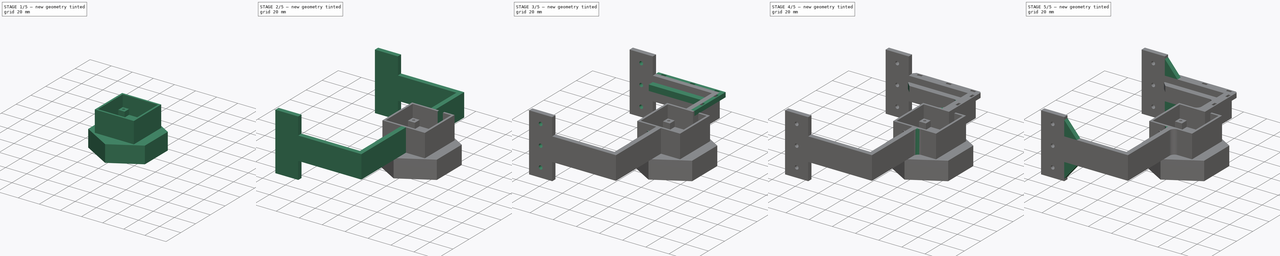
[diagram: build sequence overview — one tinted view per stage of 5, left to right]
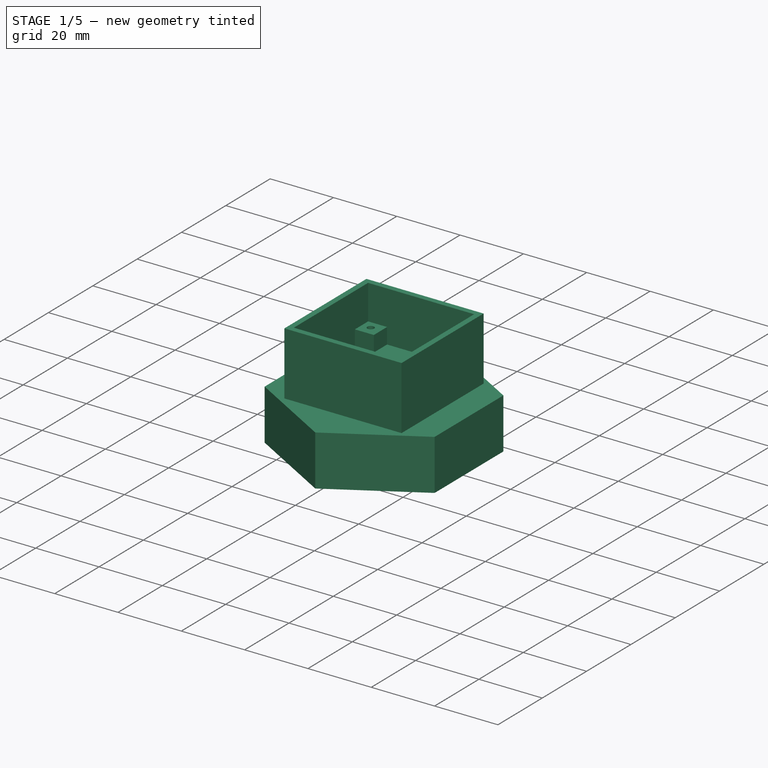
[diagram: stage 1 of 5 — iso view after this stage's code; geometry added in this stage tinted green]
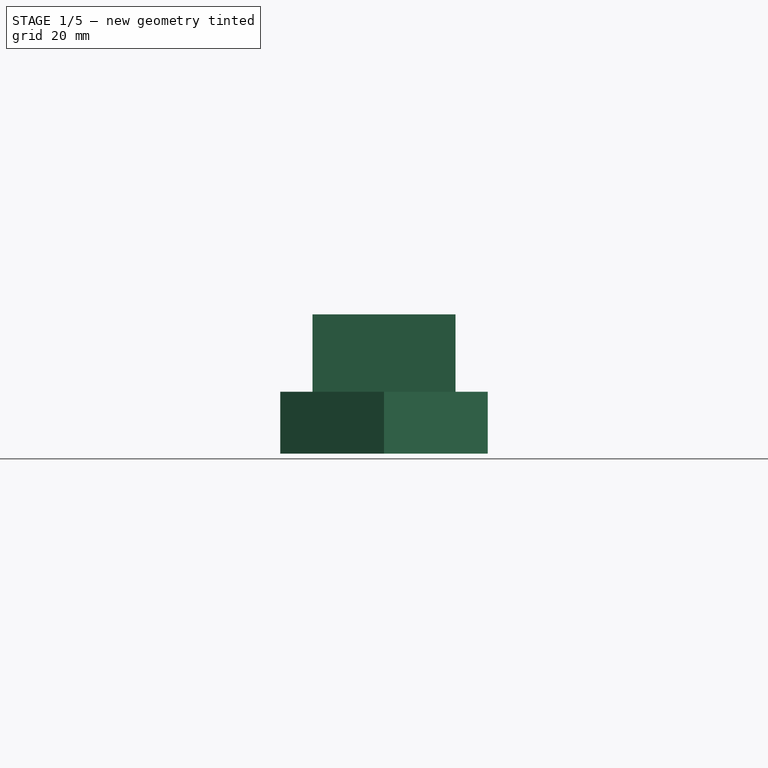
[diagram: stage 1 of 5 — front view after this stage's code; geometry added in this stage tinted green]
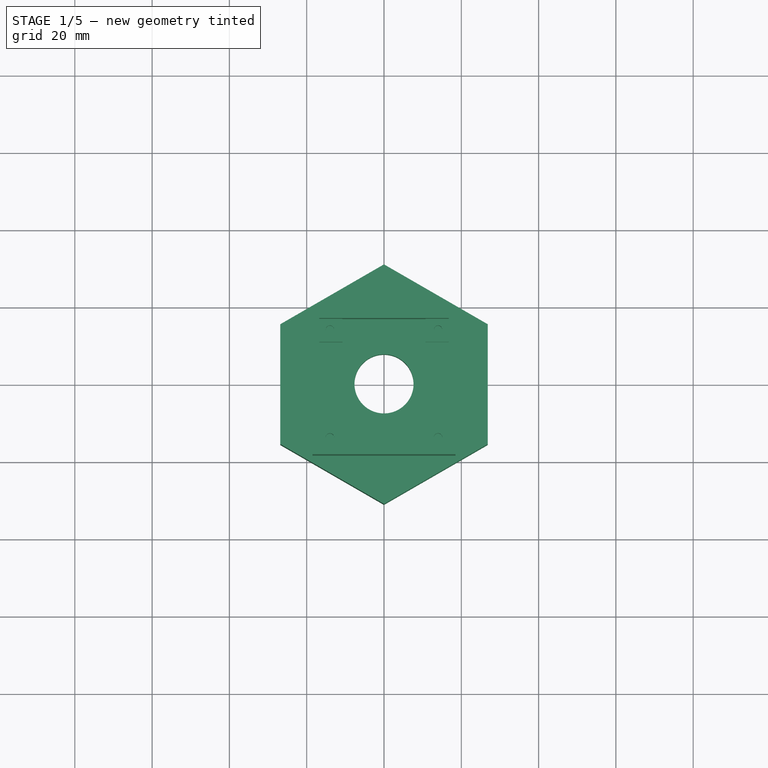
[diagram: stage 1 of 5 — top view after this stage's code; geometry added in this stage tinted green]
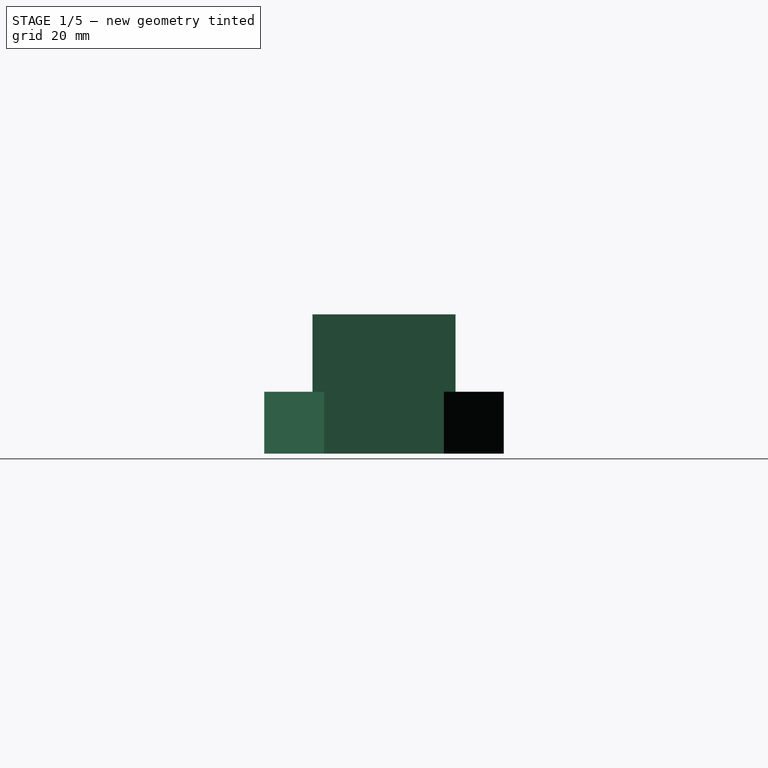
[diagram: stage 1 of 5 — right view after this stage's code; geometry added in this stage tinted green]
FCSTD DOCUMENT  (FreeCAD 0.20R29177 +233 (Git))
Label: cam_up_holder
License: All rights reserved
LicenseURL: http://en.wikipedia.org/wiki/All_rights_reserved
objects: Sketcher::SketchObject×25, PartDesign::Pad×17, PartDesign::Fillet×9, PartDesign::Pocket×8, PartDesign::Chamfer×2, PartDesign::Plane×1, PartDesign::Body×1
note: 99 computed .brp shape members not serialized (recipe doc carries the construction recipe); baked Part::Feature solids carry a one-line shape summary decoded from their .brp

FEATURE [Sketcher::SketchObject] Sketch
  FullyConstrained = true
  MapMode = 5
  Support = -> [XY_Plane]
  sketch-geometry (4):
    g0: LineSegment StartX=-18.5 StartY=18.5 StartZ=0 EndX=18.5 EndY=18.5 EndZ=0
    g1: LineSegment StartX=18.5 StartY=18.5 StartZ=0 EndX=18.5 EndY=-18.5 EndZ=0
    g2: LineSegment StartX=18.5 StartY=-18.5 StartZ=0 EndX=-18.5 EndY=-18.5 EndZ=0
    g3: LineSegment StartX=-18.5 StartY=-18.5 StartZ=0 EndX=-18.5 EndY=18.5 EndZ=0
  constraints (10):
    c: Coincident(g0,g1)
    c: Coincident(g1,g2)
    c: Coincident(g2,g3)
    c: Coincident(g3,g0)
    c: Horizontal(g2)
    c: Vertical(g1)
    c: DistanceX(g0,g0) = 37
    c: DistanceY(g1,g1) = 37
    c: Symmetric(g0,g0,g-2)
    c: Symmetric(g0,g2,g-1)
FEATURE [PartDesign::Pad] Pad
  Direction = (0,0,1)
  Length = 20
  Length2 = 10
  Profile = -> Sketch
  ReferenceAxis = -> Sketch [N_Axis]
  Type = 0
FEATURE [Sketcher::SketchObject] Sketch001
  FullyConstrained = true
  MapMode = 5
  Placement = pos=(0,0,20) rot=(0,0,1;0rad)
  Support = -> [Pad]
  sketch-geometry (4):
    g0: LineSegment StartX=-16.75 StartY=16.75 StartZ=0 EndX=16.75 EndY=16.75 EndZ=0
    g1: LineSegment StartX=16.75 StartY=16.75 StartZ=0 EndX=16.75 EndY=-16.75 EndZ=0
    g2: LineSegment StartX=16.75 StartY=-16.75 StartZ=0 EndX=-16.75 EndY=-16.75 EndZ=0
    g3: LineSegment StartX=-16.75 StartY=-16.75 StartZ=0 EndX=-16.75 EndY=16.75 EndZ=0
  constraints (10):
    c: Coincident(g0,g1)
    c: Coincident(g1,g2)
    c: Coincident(g2,g3)
    c: Coincident(g3,g0)
    c: Horizontal(g2)
    c: Vertical(g1)
    c: DistanceY(g1,g1) = 33.5
    c: DistanceX(g2,g2) = 33.5
    c: Symmetric(g0,g0,g-2)
    c: Symmetric(g0,g2,g-1)
FEATURE [PartDesign::Pocket] Pocket
  BaseFeature = -> Pad
  Direction = (0,0,-1)
  Length = 16
  Length2 = 5
  Profile = -> Sketch001
  ReferenceAxis = -> Sketch001 [N_Axis]
  Type = 0
FEATURE [Sketcher::SketchObject] Sketch002
  FullyConstrained = false
  MapMode = 5
  Placement = pos=(0,0,4) rot=(0,0,1;0rad)
  Support = -> [Pocket]
  sketch-geometry (1):
    g0: Circle CenterX=0 CenterY=0 CenterZ=0 NormalX=0 NormalY=0 NormalZ=1 AngleXU=0 Radius=7.57861
  constraints (1):
    c: Coincident(g0,g-1)
FEATURE [PartDesign::Pocket] Pocket001
  BaseFeature = -> Pocket
  Direction = (0,0,-1)
  Length = 5
  Length2 = 5
  Profile = -> Sketch002
  ReferenceAxis = -> Sketch002 [N_Axis]
  Type = 0
FEATURE [Sketcher::SketchObject] Sketch003
  ExternalGeometry = -> [Pocket001]
  FullyConstrained = false
  MapMode = 5
  Placement = pos=(0,0,4) rot=(0,0,1;0rad)
  Support = -> [Pocket001]
  sketch-geometry (20):
    g0: LineSegment StartX=-16.75 StartY=16.75 StartZ=0 EndX=-10.763 EndY=16.75 EndZ=0
    g1: LineSegment StartX=-10.763 StartY=16.75 StartZ=0 EndX=-10.763 EndY=10.7788 EndZ=0
    g2: LineSegment StartX=-10.763 StartY=10.7788 StartZ=0 EndX=-16.75 EndY=10.7788 EndZ=0
    g3: LineSegment StartX=-16.75 StartY=10.7788 StartZ=0 EndX=-16.75 EndY=16.75 EndZ=0
    g4: LineSegment StartX=-16.75 StartY=-16.75 StartZ=0 EndX=-10.7906 EndY=-16.75 EndZ=0
    g5: LineSegment StartX=-10.7906 StartY=-16.75 StartZ=0 EndX=-10.7906 EndY=-10.7578 EndZ=0
    g6: LineSegment StartX=-10.7906 StartY=-10.7578 StartZ=0 EndX=-16.75 EndY=-10.7578 EndZ=0
    g7: LineSegment StartX=-16.75 StartY=-10.7578 StartZ=0 EndX=-16.75 EndY=-16.75 EndZ=0
    g8: LineSegment StartX=16.75 StartY=-16.75 StartZ=0 EndX=10.7923 EndY=-16.75 EndZ=0
    g9: LineSegment StartX=10.7923 StartY=-16.75 StartZ=0 EndX=10.7923 EndY=-10.7967 EndZ=0
    g10: LineSegment StartX=10.7923 StartY=-10.7967 StartZ=0 EndX=16.75 EndY=-10.7967 EndZ=0
    g11: LineSegment StartX=16.75 StartY=-10.7967 StartZ=0 EndX=16.75 EndY=-16.75 EndZ=0
    g12: LineSegment StartX=16.75 StartY=16.75 StartZ=0 EndX=10.7559 EndY=16.75 EndZ=0
    g13: LineSegment StartX=10.7559 StartY=16.75 StartZ=0 EndX=10.7559 EndY=10.7913 EndZ=0
    g14: LineSegment StartX=10.7559 StartY=10.7913 StartZ=0 EndX=16.75 EndY=10.7913 EndZ=0
    g15: LineSegment StartX=16.75 StartY=10.7913 StartZ=0 EndX=16.75 EndY=16.75 EndZ=0
    g16: Circle CenterX=-14 CenterY=14 CenterZ=0 NormalX=0 NormalY=0 NormalZ=1 AngleXU=0 Radius=1.05689
    g17: Circle CenterX=14 CenterY=14 CenterZ=0 NormalX=0 NormalY=0 NormalZ=1 AngleXU=0 Radius=1.05178
    g18: Circle CenterX=14 CenterY=-14 CenterZ=0 NormalX=0 NormalY=0 NormalZ=1 AngleXU=0 Radius=1.1422
    g19: Circle CenterX=-14 CenterY=-14 CenterZ=0 NormalX=0 NormalY=0 NormalZ=1 AngleXU=0 Radius=1.1337
  constraints (44):
    c: Coincident(g0,g1)
    c: Coincident(g1,g2)
    c: Coincident(g2,g3)
    c: Coincident(g3,g0)
    c: Horizontal(g0)
    c: Horizontal(g2)
    c: Vertical(g1)
    c: Vertical(g3)
    c: Coincident(g0,g-4)
    c: Coincident(g4,g5)
    c: Coincident(g5,g6)
    c: Coincident(g6,g7)
    c: Coincident(g7,g4)
    c: Horizontal(g4)
    c: Horizontal(g6)
    c: Vertical(g5)
    c: Vertical(g7)
    c: Coincident(g4,g-6)
    c: Coincident(g8,g9)
    c: Coincident(g9,g10)
    c: Coincident(g10,g11)
    c: Coincident(g11,g8)
    c: Horizontal(g8)
    c: Horizontal(g10)
    c: Vertical(g9)
    c: Vertical(g11)
    c: Coincident(g8,g-6)
    c: Coincident(g12,g13)
    c: Coincident(g13,g14)
    c: Coincident(g14,g15)
    c: Coincident(g15,g12)
    c: Horizontal(g12)
    c: Horizontal(g14)
    c: Vertical(g13)
    c: Vertical(g15)
    c: Coincident(g12,g-5)
    c: Distance(g19,g-2) = 14
    c: Distance(g18,g-2) = 14
    c: Distance(g19,g-1) = 14
    c: Distance(g18,g-1) = 14
    c: Distance(g17,g-1) = 14
    c: Distance(g17,g-2) = 14
    c: Distance(g16,g-1) = 14
    c: Distance(g16,g-2) = 14
FEATURE [PartDesign::Pad] Pad001
  BaseFeature = -> Pocket001
  Direction = (0,0,1)
  Length = 5
  Length2 = 10
  Profile = -> Sketch003
  ReferenceAxis = -> Sketch003 [N_Axis]
  Type = 0
FEATURE [Sketcher::SketchObject] Sketch004
  FullyConstrained = true
  MapMode = 5
  Placement = pos=(0,0,0) rot=(1,0,0;3.14159rad)
  Support = -> [Pad001]
  sketch-geometry (7):
    g0: LineSegment StartX=0 StartY=-31 StartZ=0 EndX=26.8468 EndY=-15.5 EndZ=0
    g1: LineSegment StartX=26.8468 StartY=-15.5 StartZ=0 EndX=26.8468 EndY=15.5 EndZ=0
    g2: LineSegment StartX=26.8468 StartY=15.5 StartZ=0 EndX=-1.16103e-11 EndY=31 EndZ=0
    g3: LineSegment StartX=-1.16103e-11 StartY=31 StartZ=0 EndX=-26.8468 EndY=15.5 EndZ=0
    g4: LineSegment StartX=-26.8468 StartY=15.5 StartZ=0 EndX=-26.8468 EndY=-15.5 EndZ=0
    g5: LineSegment StartX=-26.8468 StartY=-15.5 StartZ=0 EndX=0 EndY=-31 EndZ=0
    g6: Circle CenterX=0 CenterY=0 CenterZ=0 NormalX=0 NormalY=0 NormalZ=1 AngleXU=0 Radius=31
  constraints (16):
    c: Coincident(g0,g1)
    c: Coincident(g1,g2)
    c: Coincident(g2,g3)
    c: Coincident(g3,g4)
    c: Coincident(g4,g5)
    c: Coincident(g5,g0)
    c: Equal(g0, g1-g5) x5
    c: PointOnObject(g0,g6)
    c: PointOnObject(g1,g6)
    c: PointOnObject(g2,g6)
    c: PointOnObject(g3,g6)
    c: PointOnObject(g4,g6)
    c: PointOnObject(g5,g6)
    c: Coincident(g6,g-1)
    c: PointOnObject(g5,g-2)
    c: Diameter(g6) = 62
FEATURE [PartDesign::Pad] Pad002
  BaseFeature = -> Pad001
  Direction = (0,0,-1)
  Length = 16
  Length2 = 10
  Profile = -> Sketch004
  ReferenceAxis = -> Sketch004 [N_Axis]
  Type = 0
FEATURE [Sketcher::SketchObject] Sketch005
  FullyConstrained = true
  MapMode = 5
  Placement = pos=(0,0,-16) rot=(1,0,0;3.14159rad)
  Support = -> [Pad002]
  sketch-geometry (7):
    g0: LineSegment StartX=0 StartY=-29 StartZ=0 EndX=25.1147 EndY=-14.5 EndZ=0
    g1: LineSegment StartX=25.1147 StartY=-14.5 StartZ=0 EndX=25.1147 EndY=14.5 EndZ=0
    g2: LineSegment StartX=25.1147 StartY=14.5 StartZ=0 EndX=4.0252e-12 EndY=29 EndZ=0
    g3: LineSegment StartX=4.0252e-12 StartY=29 StartZ=0 EndX=-25.1147 EndY=14.5 EndZ=0
    g4: LineSegment StartX=-25.1147 StartY=14.5 StartZ=0 EndX=-25.1147 EndY=-14.5 EndZ=0
    g5: LineSegment StartX=-25.1147 StartY=-14.5 StartZ=0 EndX=0 EndY=-29 EndZ=0
    g6: Circle CenterX=0 CenterY=1e-16 CenterZ=0 NormalX=0 NormalY=0 NormalZ=1 AngleXU=0 Radius=29
  constraints (16):
    c: Coincident(g0,g1)
    c: Coincident(g1,g2)
    c: Coincident(g2,g3)
    c: Coincident(g3,g4)
    c: Coincident(g4,g5)
    c: Coincident(g5,g0)
    c: Equal(g0, g1-g5) x5
    c: PointOnObject(g0,g6)
    c: PointOnObject(g1,g6)
    c: PointOnObject(g2,g6)
    c: PointOnObject(g3,g6)
    c: PointOnObject(g4,g6)
    c: PointOnObject(g5,g6)
    c: Coincident(g6,g-1)
    c: PointOnObject(g5,g-2)
    c: Diameter(g6) = 58
FEATURE [PartDesign::Pocket] Pocket002
  BaseFeature = -> Pad002
  Direction = (0,0,1)
  Length = 10
  Length2 = 5
  Profile = -> Sketch005
  ReferenceAxis = -> Sketch005 [N_Axis]
  Type = 0
FEATURE [Sketcher::SketchObject] Sketch006
  FullyConstrained = false
  MapMode = 5
  Placement = pos=(0,0,-6) rot=(1,0,0;3.14159rad)
  Support = -> [Pocket002]
  sketch-geometry (1):
    g0: Circle CenterX=0 CenterY=0 CenterZ=0 NormalX=0 NormalY=0 NormalZ=1 AngleXU=0 Radius=7.64754
  constraints (1):
    c: Coincident(g0,g-1)
FEATURE [PartDesign::Pocket] Pocket003
  BaseFeature = -> Pocket002
  Direction = (0,0,1)
  Length = 12
  Length2 = 5
  Profile = -> Sketch006
  ReferenceAxis = -> Sketch006 [N_Axis]
  Type = 0
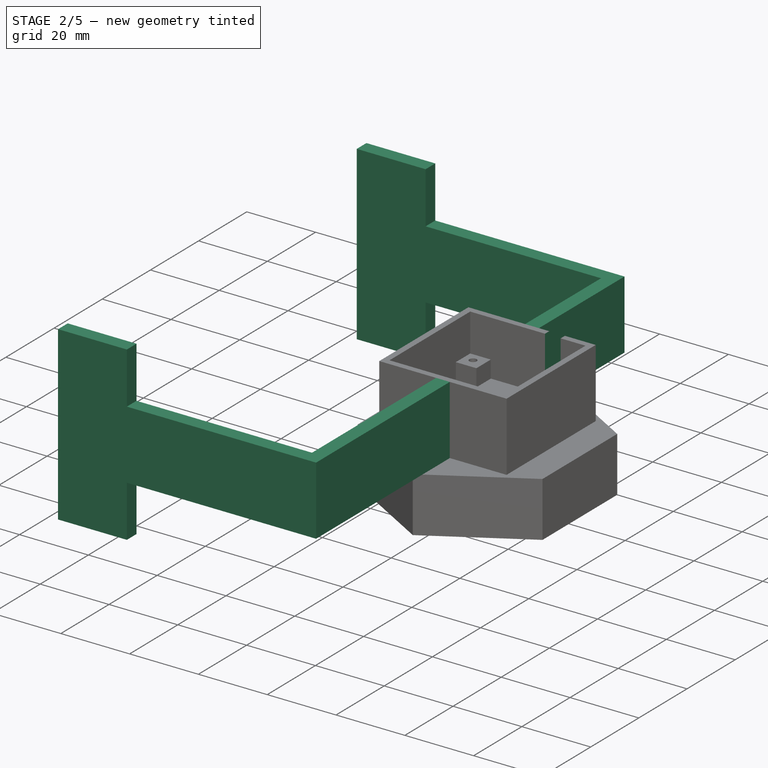
[diagram: stage 2 of 5 — iso view after this stage's code; geometry added in this stage tinted green]
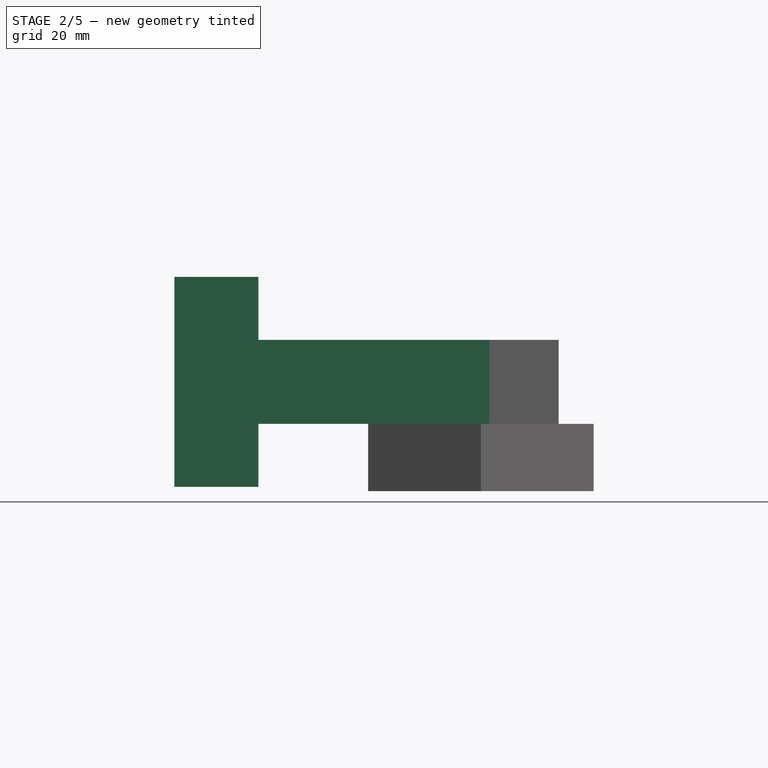
[diagram: stage 2 of 5 — front view after this stage's code; geometry added in this stage tinted green]
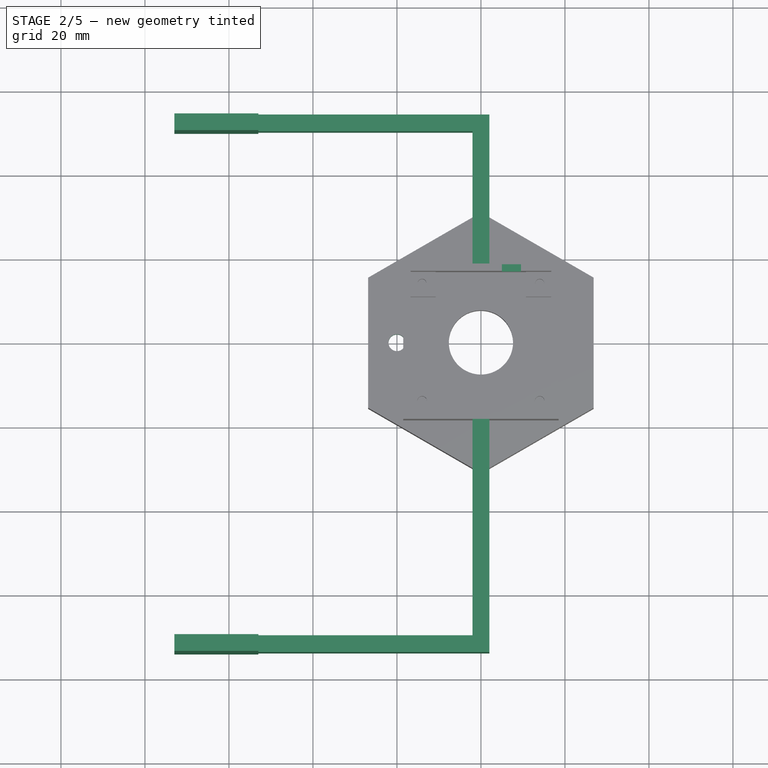
[diagram: stage 2 of 5 — top view after this stage's code; geometry added in this stage tinted green]
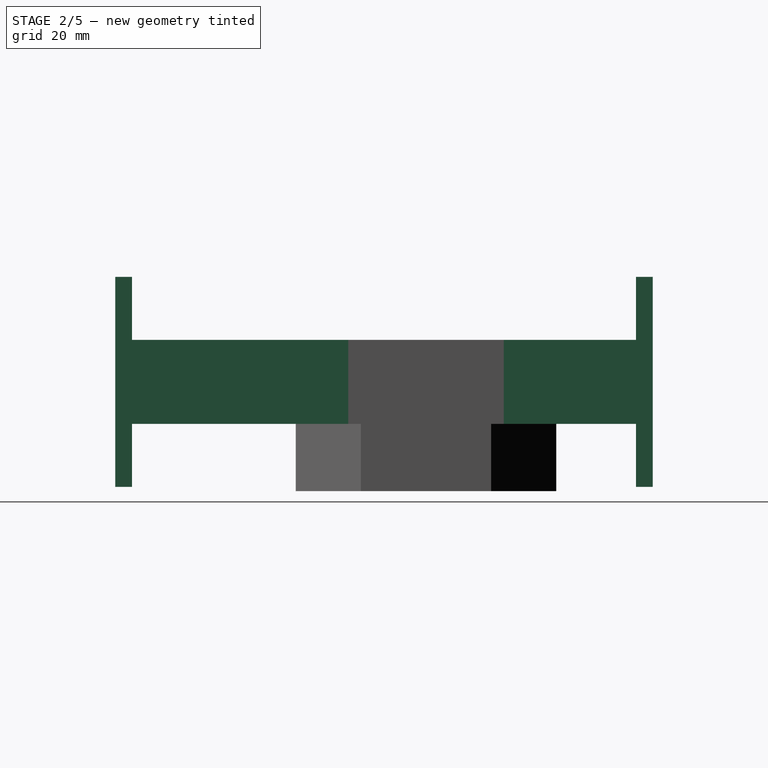
[diagram: stage 2 of 5 — right view after this stage's code; geometry added in this stage tinted green]
FEATURE [Sketcher::SketchObject] Sketch007
  FullyConstrained = false
  MapMode = 5
  Placement = pos=(0,0,-6) rot=(1,0,0;3.14159rad)
  Support = -> [Pocket003]
  sketch-geometry (1):
    g0: Circle CenterX=-20 CenterY=0 CenterZ=0 NormalX=0 NormalY=0 NormalZ=1 AngleXU=0 Radius=2
  constraints (2):
    c: PointOnObject(g0,g-1)
    c: Diameter(g0) = 4
FEATURE [PartDesign::Pocket] Pocket004
  BaseFeature = -> Pocket003
  Direction = (0,0,1)
  Length = 13
  Length2 = 5
  Profile = -> Sketch007
  ReferenceAxis = -> Sketch007 [N_Axis]
  Type = 0
FEATURE [Sketcher::SketchObject] Sketch008
  ExternalGeometry = -> [Pocket004]
  FullyConstrained = true
  MapMode = 5
  Placement = pos=(0,0,0) rot=(0.57735,0.57735,0.57735;2.0944rad)
  Support = -> [YZ_Plane]
  sketch-geometry (8):
    g0: LineSegment StartX=18.5 StartY=0 StartZ=0 EndX=50 EndY=0 EndZ=0
    g1: LineSegment StartX=50 StartY=0 StartZ=0 EndX=50 EndY=20 EndZ=0
    g2: LineSegment StartX=50 StartY=20 StartZ=0 EndX=18.5 EndY=20 EndZ=0
    g3: LineSegment StartX=18.5 StartY=20 StartZ=0 EndX=18.5 EndY=0 EndZ=0
    g4: LineSegment StartX=-18.5 StartY=-1.07e-14 StartZ=0 EndX=-70 EndY=-1.07e-14 EndZ=0
    g5: LineSegment StartX=-70 StartY=-1.07e-14 StartZ=0 EndX=-70 EndY=20 EndZ=0
    g6: LineSegment StartX=-70 StartY=20 StartZ=0 EndX=-18.5 EndY=20 EndZ=0
    g7: LineSegment StartX=-18.5 StartY=20 StartZ=0 EndX=-18.5 EndY=-1.07e-14 EndZ=0
  constraints (22):
    c: Coincident(g0,g1)
    c: Coincident(g1,g2)
    c: Coincident(g2,g3)
    c: Coincident(g3,g0)
    c: Horizontal(g0)
    c: Horizontal(g2)
    c: Vertical(g1)
    c: Vertical(g3)
    c: Coincident(g0,g-3)
    c: Coincident(g4,g5)
    c: Coincident(g5,g6)
    c: Coincident(g6,g7)
    c: Coincident(g7,g4)
    c: Horizontal(g4)
    c: Horizontal(g6)
    c: Vertical(g5)
    c: Vertical(g7)
    c: Coincident(g4,g-4)
    c: DistanceY(g1,g1) = 20
    c: DistanceY(g5,g5) = 20
    c: DistanceX(g4,g4) = 51.5
    c: DistanceX(g0,g0) = 31.5
FEATURE [PartDesign::Pad] Pad003
  BaseFeature = -> Pocket004
  Direction = (1,-2e-16,3e-16)
  Length = 4
  Length2 = 10
  Midplane = true
  Profile = -> Sketch008
  ReferenceAxis = -> Sketch008 [N_Axis]
  Type = 0
FEATURE [PartDesign::Plane] DatumPlane
  Length = 122.72
  MapMode = 5
  Placement = pos=(0,0,20) rot=(0,0,1;0rad)
  ResizeMode = 0
  Support = -> [Pad003]
  Width = 153.874
FEATURE [Sketcher::SketchObject] Sketch009
  FullyConstrained = false
  MapMode = 5
  Placement = pos=(0,0,20) rot=(0,0,1;0rad)
  Support = -> [DatumPlane]
  sketch-geometry (4):
    g0: LineSegment StartX=5 StartY=20 StartZ=0 EndX=9.53857 EndY=20 EndZ=0
    g1: LineSegment StartX=9.53857 StartY=20 StartZ=0 EndX=9.53857 EndY=15 EndZ=0
    g2: LineSegment StartX=9.53857 StartY=15 StartZ=0 EndX=5 EndY=15 EndZ=0
    g3: LineSegment StartX=5 StartY=15 StartZ=0 EndX=5 EndY=20 EndZ=0
  constraints (8):
    c: Coincident(g0,g1)
    c: Coincident(g1,g2)
    c: Coincident(g2,g3)
    c: Coincident(g3,g0)
    c: Horizontal(g0)
    c: Horizontal(g2)
    c: Vertical(g1)
    c: Vertical(g3)
FEATURE [PartDesign::Pocket] Pocket005
  BaseFeature = -> Pad003
  Direction = (0,0,-1)
  Length = 10
  Length2 = 5
  Profile = -> Sketch009
  ReferenceAxis = -> Sketch009 [N_Axis]
  Type = 0
FEATURE [Sketcher::SketchObject] Sketch010
  FullyConstrained = false
  MapMode = 5
  Placement = pos=(-1.54e-14,-70,1.54e-14) rot=(1,0,0;1.5708rad)
  Support = -> [Pocket005]
  sketch-geometry (4):
    g0: LineSegment StartX=2 StartY=20 StartZ=0 EndX=-53 EndY=20 EndZ=0
    g1: LineSegment StartX=-53 StartY=20 StartZ=0 EndX=-53 EndY=0 EndZ=0
    g2: LineSegment StartX=-53 StartY=0 StartZ=0 EndX=2 EndY=0 EndZ=0
    g3: LineSegment StartX=2 StartY=0 StartZ=0 EndX=2 EndY=20 EndZ=0
  constraints (9):
    c: Coincident(g0,g1)
    c: Coincident(g1,g2)
    c: Coincident(g2,g3)
    c: Coincident(g3,g0)
    c: Horizontal(g0)
    c: Horizontal(g2)
    c: Vertical(g1)
    c: Vertical(g3)
    c: DistanceX(g2,g2) = 55
FEATURE [PartDesign::Pad] Pad004
  BaseFeature = -> Pocket005
  Direction = (-2e-16,-1,2e-16)
  Length = 4
  Length2 = 10
  Profile = -> Sketch010
  ReferenceAxis = -> Sketch010 [N_Axis]
  Type = 0
FEATURE [Sketcher::SketchObject] Sketch011
  FullyConstrained = false
  MapMode = 5
  Placement = pos=(1.1e-14,50,-1.1e-14) rot=(0,0.707107,0.707107;3.14159rad)
  Support = -> [Pad004]
  sketch-geometry (4):
    g0: LineSegment StartX=-2 StartY=20 StartZ=0 EndX=53 EndY=20 EndZ=0
    g1: LineSegment StartX=53 StartY=20 StartZ=0 EndX=53 EndY=0 EndZ=0
    g2: LineSegment StartX=53 StartY=0 StartZ=0 EndX=-2 EndY=0 EndZ=0
    g3: LineSegment StartX=-2 StartY=0 StartZ=0 EndX=-2 EndY=20 EndZ=0
  constraints (10):
    c: Coincident(g0,g1)
    c: Coincident(g1,g2)
    c: Coincident(g2,g3)
    c: Coincident(g3,g0)
    c: Horizontal(g0)
    c: Horizontal(g2)
    c: Vertical(g1)
    c: Vertical(g3)
    c: PointOnObject(g1,g-1)
    c: DistanceX(g2,g2) = 55
FEATURE [PartDesign::Pad] Pad005
  BaseFeature = -> Pad004
  Direction = (2e-16,1,-2e-16)
  Length = 4
  Length2 = 10
  Profile = -> Sketch011
  ReferenceAxis = -> Sketch011 [N_Axis]
  Type = 0
FEATURE [Sketcher::SketchObject] Sketch012
  ExternalGeometry = -> [Pad005]
  FullyConstrained = true
  MapMode = 5
  Placement = pos=(-1.92e-14,-74,0) rot=(1,0,0;1.5708rad)
  Support = -> [Pad005]
  sketch-geometry (5):
    g0: LineSegment StartX=-73 StartY=35 StartZ=0 EndX=-53 EndY=35 EndZ=0
    g1: LineSegment StartX=-53 StartY=35 StartZ=0 EndX=-53 EndY=-15 EndZ=0
    g2: LineSegment StartX=-53 StartY=-15 StartZ=0 EndX=-73 EndY=-15 EndZ=0
    g3: LineSegment StartX=-73 StartY=-15 StartZ=0 EndX=-73 EndY=35 EndZ=0
    g4: LineSegment StartX=-53 StartY=10 StartZ=0 EndX=0 EndY=10 EndZ=0
  constraints (14):
    c: Coincident(g0,g1)
    c: Coincident(g1,g2)
    c: Coincident(g2,g3)
    c: Coincident(g3,g0)
    c: Horizontal(g0)
    c: Horizontal(g2)
    c: Vertical(g1)
    c: Vertical(g3)
    c: DistanceY(g3,g3) = 50
    c: DistanceX(g0,g0) = 20
    c: PointOnObject(g4,g1)
    c: Horizontal(g4)
    c: Block(g4)
    c: Distance(g1,g4) = 25
FEATURE [PartDesign::Pad] Pad006
  BaseFeature = -> Pad005
  Direction = (-3e-16,-1,2e-16)
  Length = 4
  Length2 = 10
  Profile = -> Sketch012
  ReferenceAxis = -> Sketch012 [N_Axis]
  Reversed = true
  Type = 0
FEATURE [Sketcher::SketchObject] Sketch013
  FullyConstrained = false
  MapMode = 5
  Placement = pos=(1.03e-14,54,-9.7e-15) rot=(0,0.707107,0.707107;3.14159rad)
  Support = -> [Pad006]
  sketch-geometry (4):
    g0: LineSegment StartX=53 StartY=35 StartZ=0 EndX=73 EndY=35 EndZ=0
    g1: LineSegment StartX=73 StartY=35 StartZ=0 EndX=73 EndY=-15 EndZ=0
    g2: LineSegment StartX=73 StartY=-15 StartZ=0 EndX=53 EndY=-15 EndZ=0
    g3: LineSegment StartX=53 StartY=-15 StartZ=0 EndX=53 EndY=35 EndZ=0
  constraints (8):
    c: Coincident(g0,g1)
    c: Coincident(g1,g2)
    c: Coincident(g2,g3)
    c: Coincident(g3,g0)
    c: Horizontal(g0)
    c: Horizontal(g2)
    c: Vertical(g1)
    c: Vertical(g3)
FEATURE [PartDesign::Pad] Pad007
  BaseFeature = -> Pad006
  Direction = (2e-16,1,-2e-16)
  Length = 4
  Length2 = 10
  Profile = -> Sketch013
  ReferenceAxis = -> Sketch013 [N_Axis]
  Reversed = true
  Type = 0
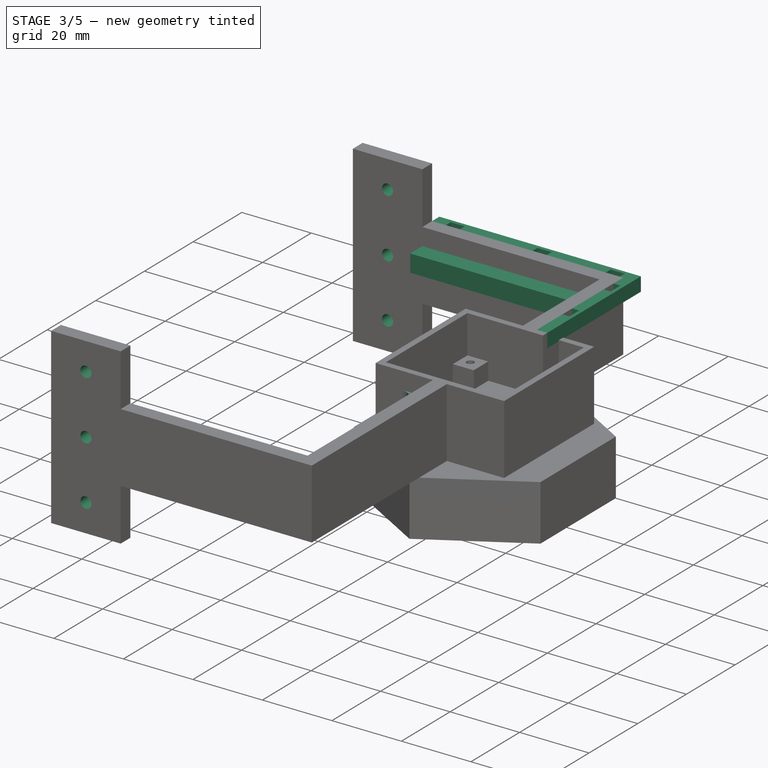
[diagram: stage 3 of 5 — iso view after this stage's code; geometry added in this stage tinted green]
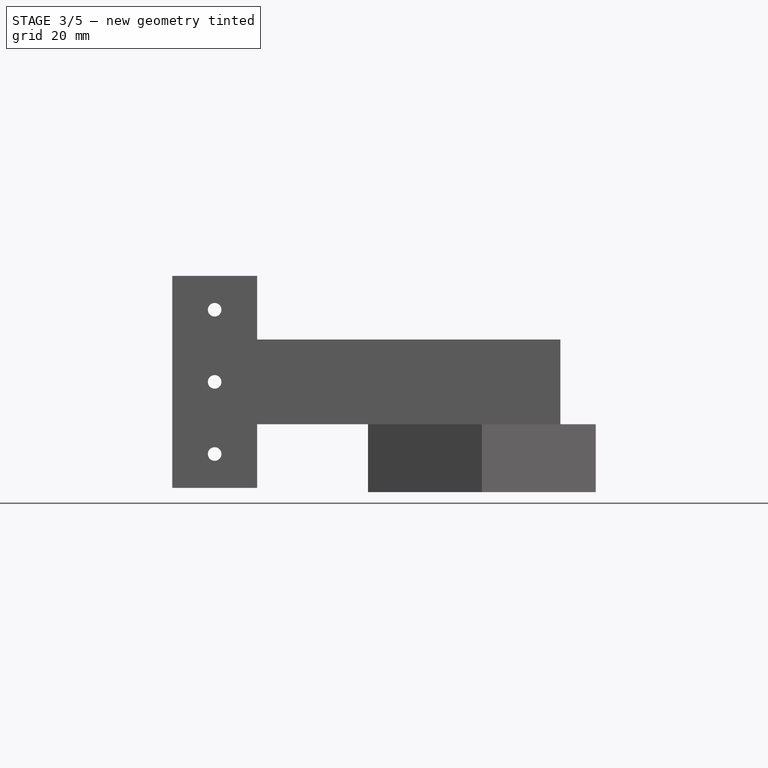
[diagram: stage 3 of 5 — front view after this stage's code; geometry added in this stage tinted green]
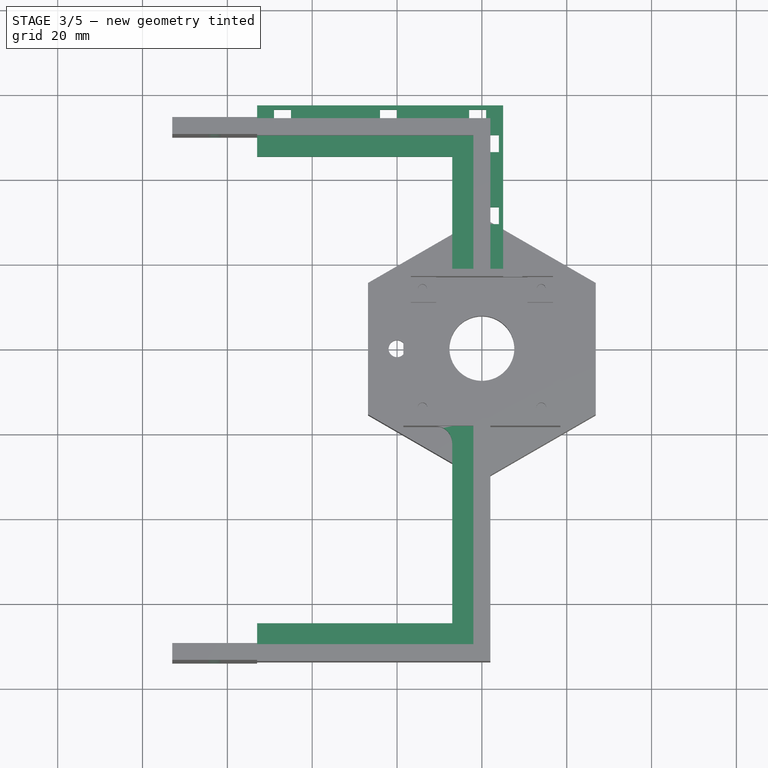
[diagram: stage 3 of 5 — top view after this stage's code; geometry added in this stage tinted green]
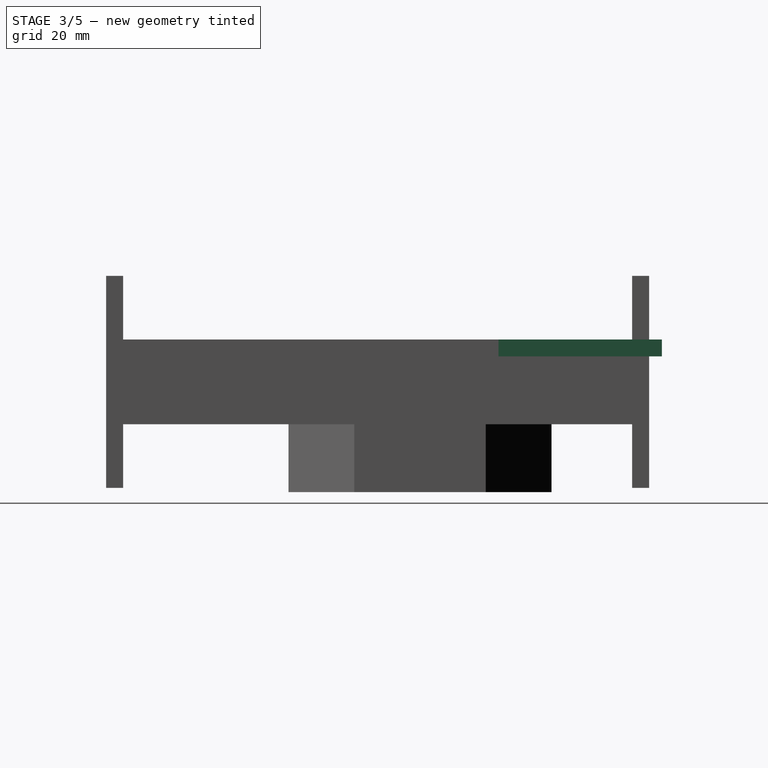
[diagram: stage 3 of 5 — right view after this stage's code; geometry added in this stage tinted green]
FEATURE [Sketcher::SketchObject] Sketch014
  ExternalGeometry = -> [Pad007]
  FullyConstrained = false
  MapMode = 5
  Placement = pos=(9.7e-15,54,-1.13e-14) rot=(0,0.707107,0.707107;3.14159rad)
  Support = -> [Pad007]
  sketch-geometry (4):
    g0: LineSegment StartX=63 StartY=-16.121 StartZ=0 EndX=63 EndY=43.1811 EndZ=0
    g1: Circle CenterX=63 CenterY=27 CenterZ=0 NormalX=0 NormalY=0 NormalZ=1 AngleXU=0 Radius=1.6
    g2: Circle CenterX=63 CenterY=10 CenterZ=0 NormalX=0 NormalY=0 NormalZ=1 AngleXU=0 Radius=1.6
    g3: Circle CenterX=63 CenterY=-7 CenterZ=0 NormalX=0 NormalY=0 NormalZ=1 AngleXU=0 Radius=1.6
  constraints (11):
    c: Vertical(g0)
    c: Distance(g-3,g0) = 10
    c: PointOnObject(g1,g0)
    c: PointOnObject(g2,g0)
    c: PointOnObject(g3,g0)
    c: Distance(g2,g-4) = 25
    c: Distance(g2,g1) = 17
    c: Distance(g2,g3) = 17
    c: Diameter(g1) = 3.2
    c: Diameter(g2) = 3.2
    c: Diameter(g3) = 3.2
FEATURE [PartDesign::Pocket] Pocket006
  BaseFeature = -> Pad007
  Direction = (-2e-16,-1,2e-16)
  Length = 140
  Length2 = 5
  Profile = -> Sketch014
  ReferenceAxis = -> Sketch014 [N_Axis]
  Type = 0
FEATURE [Sketcher::SketchObject] Sketch015
  ExternalGeometry = -> [Pocket006]
  FullyConstrained = false
  MapMode = 5
  Placement = pos=(-2,4e-16,-4e-16) rot=(-0.57735,0.57735,0.57735;4.18879rad)
  Support = -> [Pocket006]
  sketch-geometry (8):
    g0: LineSegment StartX=-18.5 StartY=15 StartZ=0 EndX=-50 EndY=15 EndZ=0
    g1: LineSegment StartX=-50 StartY=15 StartZ=0 EndX=-50 EndY=10 EndZ=0
    g2: LineSegment StartX=-50 StartY=10 StartZ=0 EndX=-18.5 EndY=10 EndZ=0
    g3: LineSegment StartX=-18.5 StartY=10 StartZ=0 EndX=-18.5 EndY=15 EndZ=0
    g4: LineSegment StartX=18.5 StartY=15 StartZ=0 EndX=70 EndY=15 EndZ=0
    g5: LineSegment StartX=70 StartY=15 StartZ=0 EndX=70 EndY=10 EndZ=0
    g6: LineSegment StartX=70 StartY=10 StartZ=0 EndX=18.5 EndY=10 EndZ=0
    g7: LineSegment StartX=18.5 StartY=10 StartZ=0 EndX=18.5 EndY=15 EndZ=0
  constraints (22):
    c: Coincident(g0,g1)
    c: Coincident(g1,g2)
    c: Coincident(g2,g3)
    c: Coincident(g3,g0)
    c: Horizontal(g0)
    c: Horizontal(g2)
    c: Vertical(g1)
    c: Vertical(g3)
    c: PointOnObject(g0,g-3)
    c: PointOnObject(g1,g-5)
    c: Coincident(g4,g5)
    c: Coincident(g5,g6)
    c: Coincident(g6,g7)
    c: Coincident(g7,g4)
    c: Horizontal(g4)
    c: Horizontal(g6)
    c: Vertical(g5)
    c: Vertical(g7)
    c: PointOnObject(g4,g-4)
    c: PointOnObject(g5,g-6)
    c: DistanceY(g1,g1) = 5
    c: DistanceY(g7,g7) = 5
FEATURE [PartDesign::Pad] Pad008
  BaseFeature = -> Pocket006
  Direction = (-1,2e-16,-2e-16)
  Length = 5
  Length2 = 10
  Profile = -> Sketch015
  ReferenceAxis = -> Sketch015 [N_Axis]
  Type = 0
FEATURE [Sketcher::SketchObject] Sketch016
  ExternalGeometry = -> [Pad008]
  FullyConstrained = false
  MapMode = 5
  Placement = pos=(-1.82e-14,-70,0) rot=(0,0.707107,0.707107;3.14159rad)
  Support = -> [Pad008]
  sketch-geometry (4):
    g0: LineSegment StartX=7 StartY=15 StartZ=0 EndX=53 EndY=15 EndZ=0
    g1: LineSegment StartX=53 StartY=15 StartZ=0 EndX=53 EndY=10 EndZ=0
    g2: LineSegment StartX=53 StartY=10 StartZ=0 EndX=7 EndY=10 EndZ=0
    g3: LineSegment StartX=7 StartY=10 StartZ=0 EndX=7 EndY=15 EndZ=0
  constraints (9):
    c: Coincident(g0,g1)
    c: Coincident(g1,g2)
    c: Coincident(g2,g3)
    c: Coincident(g3,g0)
    c: Horizontal(g0)
    c: Horizontal(g2)
    c: Vertical(g1)
    c: Vertical(g3)
    c: Coincident(g0,g-3)
FEATURE [PartDesign::Pad] Pad009
  BaseFeature = -> Pad008
  Direction = (3e-16,1,-2e-16)
  Length = 5
  Length2 = 10
  Profile = -> Sketch016
  ReferenceAxis = -> Sketch016 [N_Axis]
  Type = 0
FEATURE [Sketcher::SketchObject] Sketch017
  ExternalGeometry = -> [Pad009]
  FullyConstrained = false
  MapMode = 5
  Placement = pos=(9.5e-15,50,-9e-15) rot=(1,0,0;1.5708rad)
  Support = -> [Pad009]
  sketch-geometry (4):
    g0: LineSegment StartX=-7 StartY=10 StartZ=0 EndX=-53 EndY=10 EndZ=0
    g1: LineSegment StartX=-53 StartY=10 StartZ=0 EndX=-53 EndY=15 EndZ=0
    g2: LineSegment StartX=-53 StartY=15 StartZ=0 EndX=-7 EndY=15 EndZ=0
    g3: LineSegment StartX=-7 StartY=15 StartZ=0 EndX=-7 EndY=10 EndZ=0
  constraints (10):
    c: Coincident(g0,g1)
    c: Coincident(g1,g2)
    c: Coincident(g2,g3)
    c: Coincident(g3,g0)
    c: Horizontal(g0)
    c: Horizontal(g2)
    c: Vertical(g1)
    c: Vertical(g3)
    c: Coincident(g0,g-3)
    c: PointOnObject(g1,g-4)
FEATURE [PartDesign::Pad] Pad010
  BaseFeature = -> Pad009
  Direction = (-2e-16,-1,2e-16)
  Length = 5
  Length2 = 10
  Profile = -> Sketch017
  ReferenceAxis = -> Sketch017 [N_Axis]
  Type = 0
FEATURE [Sketcher::SketchObject] Sketch018
  ExternalGeometry = -> [Pad010]
  FullyConstrained = false
  MapMode = 5
  Placement = pos=(2,-4e-16,4e-16) rot=(0.57735,0.57735,0.57735;2.0944rad)
  Support = -> [Pad010]
  sketch-geometry (4):
    g0: LineSegment StartX=18.5 StartY=20 StartZ=0 EndX=54 EndY=20 EndZ=0
    g1: LineSegment StartX=54 StartY=20 StartZ=0 EndX=54 EndY=16 EndZ=0
    g2: LineSegment StartX=54 StartY=16 StartZ=0 EndX=18.5 EndY=16 EndZ=0
    g3: LineSegment StartX=18.5 StartY=16 StartZ=0 EndX=18.5 EndY=20 EndZ=0
  constraints (10):
    c: Coincident(g0,g1)
    c: Coincident(g1,g2)
    c: Coincident(g2,g3)
    c: Coincident(g3,g0)
    c: Horizontal(g0)
    c: Horizontal(g2)
    c: Vertical(g1)
    c: Vertical(g3)
    c: Coincident(g0,g-3)
    c: PointOnObject(g1,g-4)
FEATURE [PartDesign::Pad] Pad011
  BaseFeature = -> Pad010
  Direction = (1,-2e-16,2e-16)
  Length = 3
  Length2 = 10
  Profile = -> Sketch018
  ReferenceAxis = -> Sketch018 [N_Axis]
  Type = 0
FEATURE [Sketcher::SketchObject] Sketch019
  ExternalGeometry = -> [Pad011]
  FullyConstrained = false
  MapMode = 5
  Placement = pos=(1.03e-14,54,-9.7e-15) rot=(0,0.707107,0.707107;3.14159rad)
  Support = -> [Pad011]
  sketch-geometry (4):
    g0: LineSegment StartX=-5 StartY=20 StartZ=0 EndX=53 EndY=20 EndZ=0
    g1: LineSegment StartX=53 StartY=20 StartZ=0 EndX=53 EndY=16 EndZ=0
    g2: LineSegment StartX=53 StartY=16 StartZ=0 EndX=-5 EndY=16 EndZ=0
    g3: LineSegment StartX=-5 StartY=16 StartZ=0 EndX=-5 EndY=20 EndZ=0
  constraints (10):
    c: Coincident(g0,g1)
    c: Coincident(g1,g2)
    c: Coincident(g2,g3)
    c: Coincident(g3,g0)
    c: Horizontal(g0)
    c: Horizontal(g2)
    c: Vertical(g1)
    c: Vertical(g3)
    c: Coincident(g0,g-4)
    c: PointOnObject(g1,g-3)
FEATURE [PartDesign::Pad] Pad012
  BaseFeature = -> Pad011
  Direction = (2e-16,1,-2e-16)
  Length = 3
  Length2 = 10
  Profile = -> Sketch019
  ReferenceAxis = -> Sketch019 [N_Axis]
  Type = 0
FEATURE [Sketcher::SketchObject] Sketch020
  FullyConstrained = false
  MapMode = 5
  Placement = pos=(-4.4e-15,0,20) rot=(0,0,1;0rad)
  Support = -> [Pad012]
  sketch-geometry (20):
    g0: LineSegment StartX=2 StartY=33 StartZ=0 EndX=4 EndY=33 EndZ=0
    g1: LineSegment StartX=4 StartY=33 StartZ=0 EndX=4 EndY=29 EndZ=0
    g2: LineSegment StartX=4 StartY=29 StartZ=0 EndX=2 EndY=29 EndZ=0
    g3: LineSegment StartX=2 StartY=29 StartZ=0 EndX=2 EndY=33 EndZ=0
    g4: LineSegment StartX=2 StartY=50 StartZ=0 EndX=4 EndY=50 EndZ=0
    g5: LineSegment StartX=4 StartY=50 StartZ=0 EndX=4 EndY=46 EndZ=0
    g6: LineSegment StartX=4 StartY=46 StartZ=0 EndX=2 EndY=46 EndZ=0
    g7: LineSegment StartX=2 StartY=46 StartZ=0 EndX=2 EndY=50 EndZ=0
    g8: LineSegment StartX=1 StartY=54 StartZ=0 EndX=-3 EndY=54 EndZ=0
    g9: LineSegment StartX=-3 StartY=54 StartZ=0 EndX=-3 EndY=56 EndZ=0
    g10: LineSegment StartX=-3 StartY=56 StartZ=0 EndX=1 EndY=56 EndZ=0
    g11: LineSegment StartX=1 StartY=56 StartZ=0 EndX=1 EndY=54 EndZ=0
    g12: LineSegment StartX=-20 StartY=54 StartZ=0 EndX=-24.0294 EndY=54 EndZ=0
    g13: LineSegment StartX=-24.0294 StartY=54 StartZ=0 EndX=-24.0294 EndY=56 EndZ=0
    g14: LineSegment StartX=-24.0294 StartY=56 StartZ=0 EndX=-20 EndY=56 EndZ=0
    g15: LineSegment StartX=-20 StartY=56 StartZ=0 EndX=-20 EndY=54 EndZ=0
    g16: LineSegment StartX=-49 StartY=54 StartZ=0 EndX=-45 EndY=54 EndZ=0
    g17: LineSegment StartX=-45 StartY=54 StartZ=0 EndX=-45 EndY=56 EndZ=0
    g18: LineSegment StartX=-45 StartY=56 StartZ=0 EndX=-49 EndY=56 EndZ=0
    g19: LineSegment StartX=-49 StartY=56 StartZ=0 EndX=-49 EndY=54 EndZ=0
  constraints (40):
    c: Coincident(g0,g1)
    c: Coincident(g1,g2)
    c: Coincident(g2,g3)
    c: Coincident(g3,g0)
    c: Horizontal(g0)
    c: Horizontal(g2)
    c: Vertical(g1)
    c: Vertical(g3)
    c: Coincident(g4,g5)
    c: Coincident(g5,g6)
    c: Coincident(g6,g7)
    c: Coincident(g7,g4)
    c: Horizontal(g4)
    c: Horizontal(g6)
    c: Vertical(g5)
    c: Vertical(g7)
    c: Coincident(g8,g9)
    c: Coincident(g9,g10)
    c: Coincident(g10,g11)
    c: Coincident(g11,g8)
    c: Horizontal(g8)
    c: Horizontal(g10)
    c: Vertical(g9)
    c: Vertical(g11)
    c: Coincident(g12,g13)
    c: Coincident(g13,g14)
    c: Coincident(g14,g15)
    c: Coincident(g15,g12)
    c: Horizontal(g12)
    c: Horizontal(g14)
    c: Vertical(g13)
    c: Vertical(g15)
    c: Coincident(g16,g17)
    c: Coincident(g17,g18)
    c: Coincident(g18,g19)
    c: Coincident(g19,g16)
    c: Horizontal(g16)
    c: Horizontal(g18)
    c: Vertical(g17)
    c: Vertical(g19)
FEATURE [PartDesign::Pocket] Pocket007
  BaseFeature = -> Pad012
  Direction = (2e-16,0,-1)
  Length = 5
  Length2 = 5
  Profile = -> Sketch020
  ReferenceAxis = -> Sketch020 [N_Axis]
  Type = 0
FEATURE [PartDesign::Fillet] Fillet
  Base = -> Pocket007 [Edge244]
  BaseFeature = -> Pocket007
  Radius = 4
  SupportTransform = false
  UseAllEdges = false
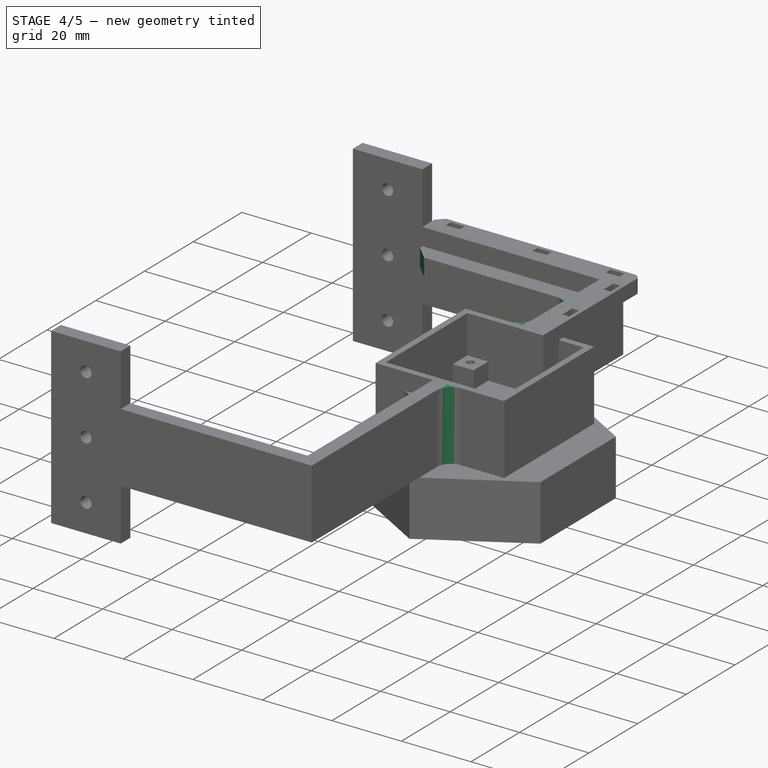
[diagram: stage 4 of 5 — iso view after this stage's code; geometry added in this stage tinted green]
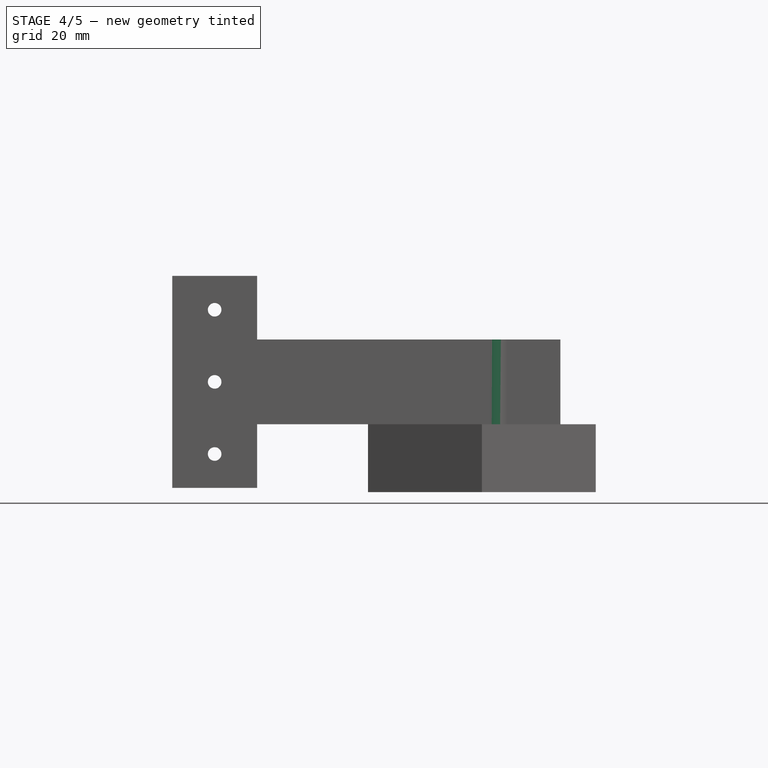
[diagram: stage 4 of 5 — front view after this stage's code; geometry added in this stage tinted green]
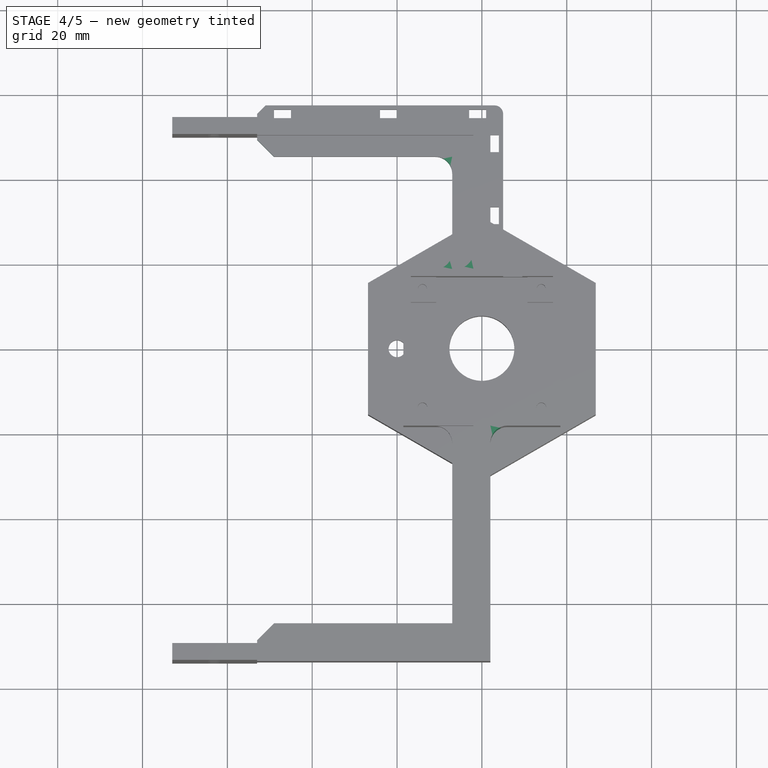
[diagram: stage 4 of 5 — top view after this stage's code; geometry added in this stage tinted green]
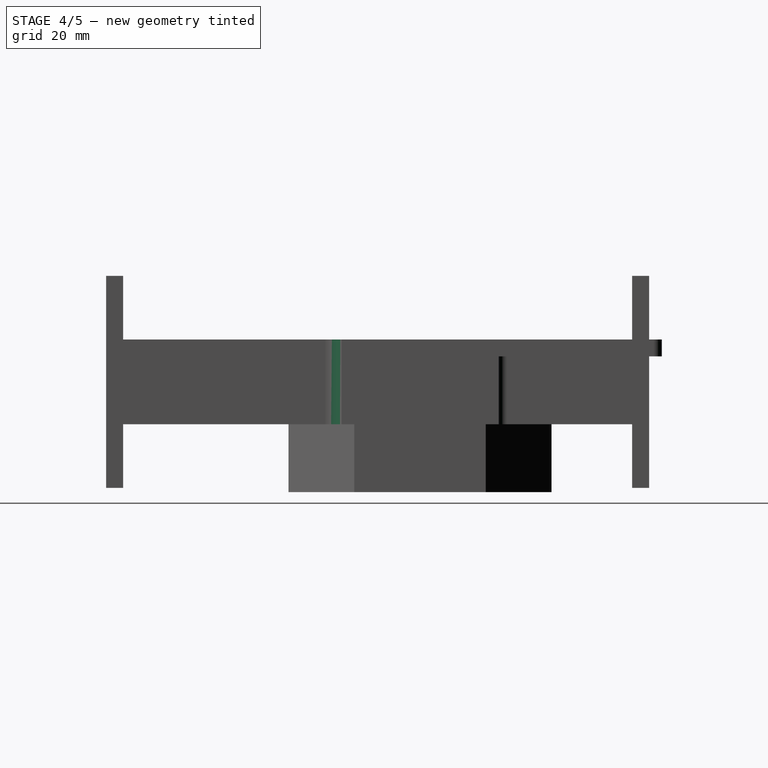
[diagram: stage 4 of 5 — right view after this stage's code; geometry added in this stage tinted green]
FEATURE [PartDesign::Fillet] Fillet001
  Base = -> Fillet [Edge146]
  BaseFeature = -> Fillet
  Radius = 4
  SupportTransform = false
  UseAllEdges = false
FEATURE [PartDesign::Fillet] Fillet002
  Base = -> Fillet001 [Edge32]
  BaseFeature = -> Fillet001
  Radius = 2
  SupportTransform = false
  UseAllEdges = false
FEATURE [PartDesign::Fillet] Fillet003
  Base = -> Fillet002 [Edge191]
  BaseFeature = -> Fillet002
  Radius = 2
  SupportTransform = false
  UseAllEdges = false
FEATURE [PartDesign::Chamfer] Chamfer
  Angle = 45
  Base = -> Fillet003 [Edge37]
  BaseFeature = -> Fillet003
  ChamferType = 0
  FlipDirection = false
  Size = 2
  Size2 = 1
  SupportTransform = false
  UseAllEdges = false
FEATURE [PartDesign::Chamfer] Chamfer001
  Angle = 45
  Base = -> Chamfer [Edge275,Edge396]
  BaseFeature = -> Chamfer
  ChamferType = 0
  FlipDirection = false
  Size = 4
  Size2 = 1
  SupportTransform = false
  UseAllEdges = false
FEATURE [PartDesign::Fillet] Fillet004
  Base = -> Chamfer001 [Edge15]
  BaseFeature = -> Chamfer001
  Radius = 4
  SupportTransform = false
  UseAllEdges = false
FEATURE [PartDesign::Fillet] Fillet005
  Base = -> Fillet004 [Edge28,Edge30,Edge32]
  BaseFeature = -> Fillet004
  Radius = 4
  SupportTransform = false
  UseAllEdges = false
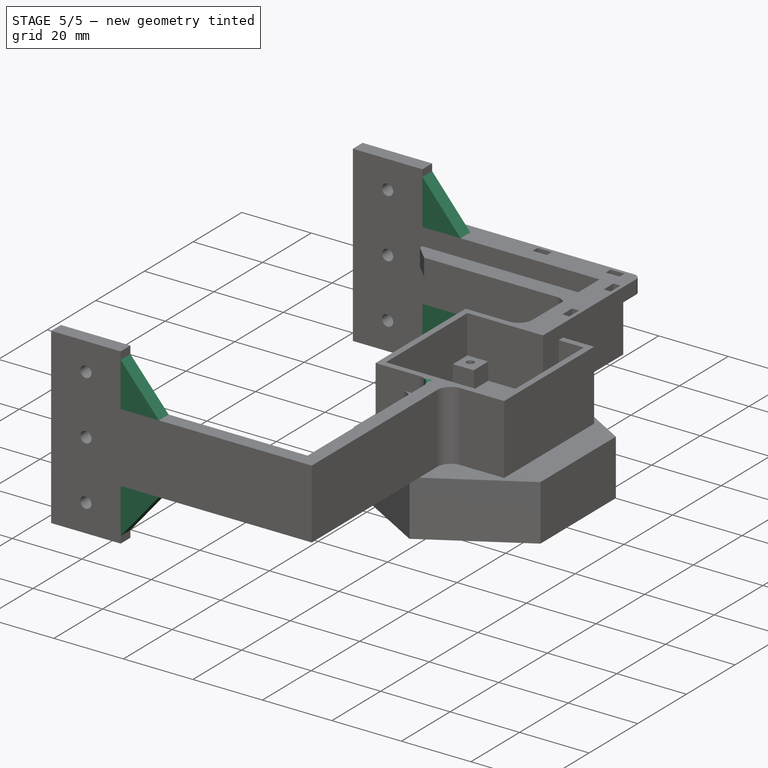
[diagram: stage 5 of 5 — iso view after this stage's code; geometry added in this stage tinted green]
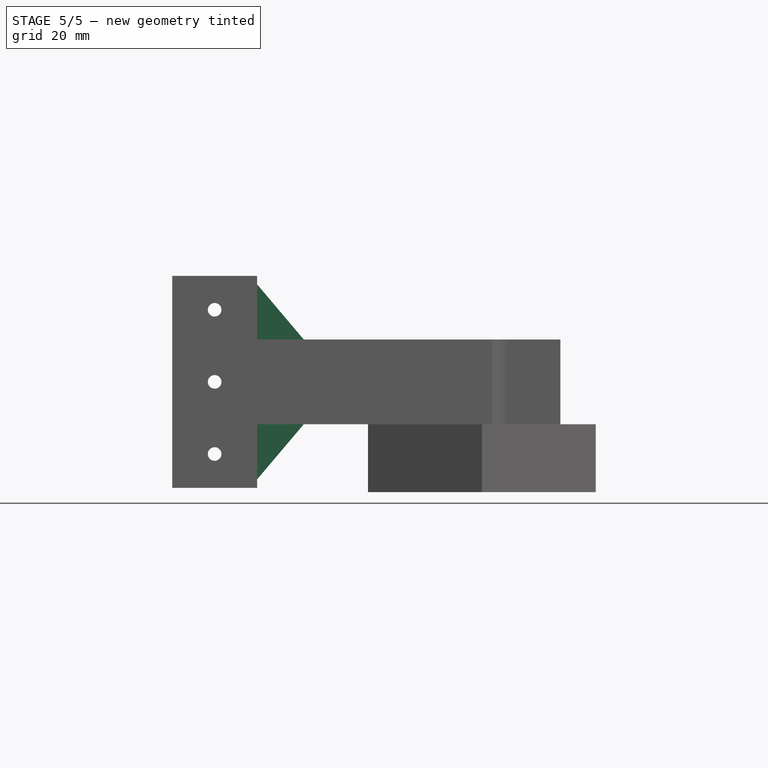
[diagram: stage 5 of 5 — front view after this stage's code; geometry added in this stage tinted green]
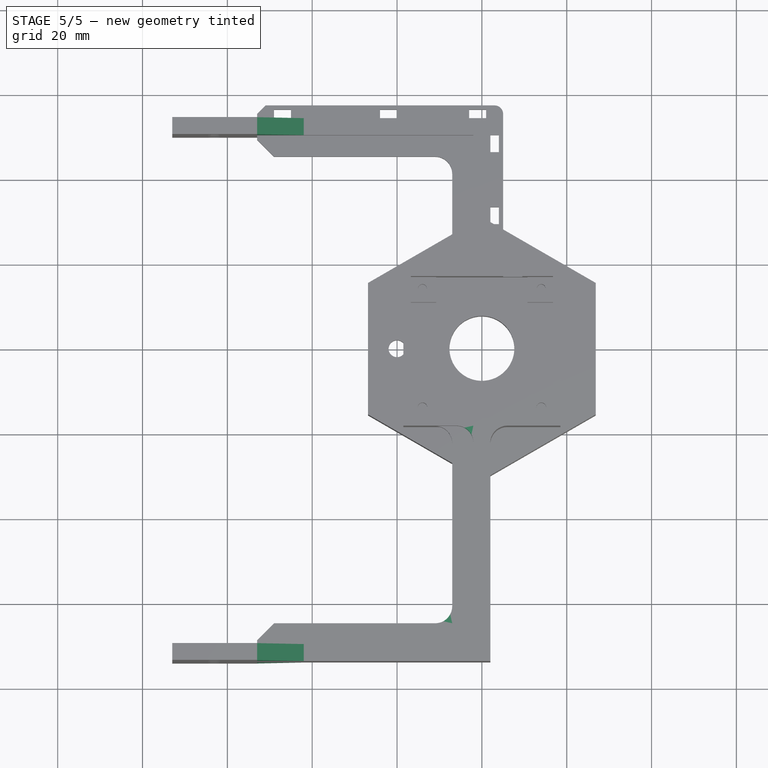
[diagram: stage 5 of 5 — top view after this stage's code; geometry added in this stage tinted green]
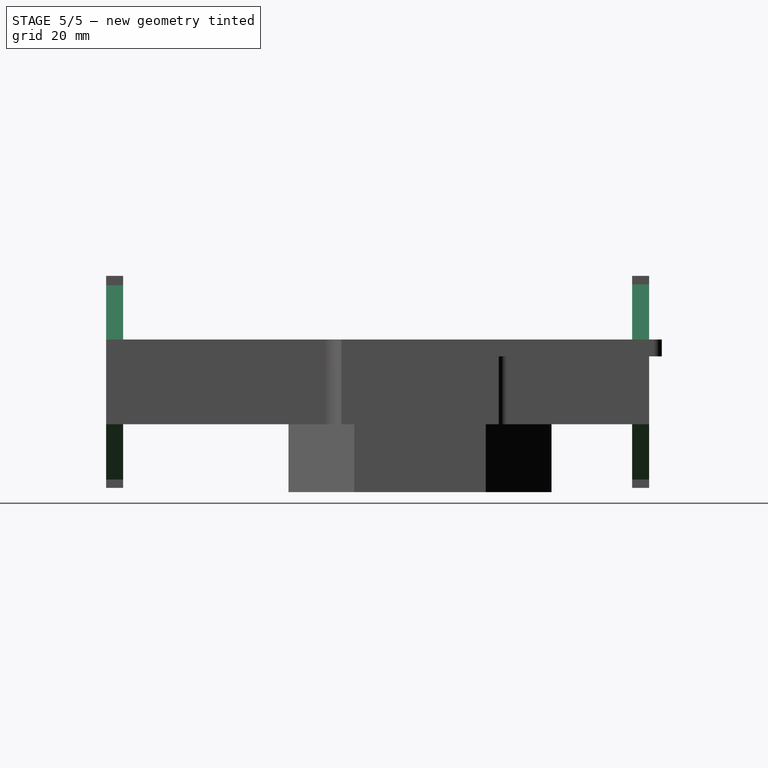
[diagram: stage 5 of 5 — right view after this stage's code; geometry added in this stage tinted green]
FEATURE [PartDesign::Fillet] Fillet006
  Base = -> Fillet005 [Edge119,Edge113]
  BaseFeature = -> Fillet005
  Radius = 4
  SupportTransform = false
  UseAllEdges = false
FEATURE [PartDesign::Fillet] Fillet007
  Base = -> Fillet006 [Edge141]
  BaseFeature = -> Fillet006
  Radius = 4
  SupportTransform = false
  UseAllEdges = false
FEATURE [Sketcher::SketchObject] Sketch021
  ExternalGeometry = -> [Fillet007]
  FullyConstrained = false
  MapMode = 5
  Placement = pos=(9.7e-15,54,-1.13e-14) rot=(0,0.707107,0.707107;3.14159rad)
  Support = -> [Fillet007]
  sketch-geometry (6):
    g0: LineSegment StartX=53 StartY=-13 StartZ=0 EndX=53 EndY=0 EndZ=0
    g1: LineSegment StartX=53 StartY=0 StartZ=0 EndX=42 EndY=0 EndZ=0
    g2: LineSegment StartX=42 StartY=0 StartZ=0 EndX=53 EndY=-13 EndZ=0
    g3: LineSegment StartX=53 StartY=20 StartZ=0 EndX=42 EndY=20 EndZ=0
    g4: LineSegment StartX=53 StartY=20 StartZ=0 EndX=53 EndY=33 EndZ=0
    g5: LineSegment StartX=42 StartY=20 StartZ=0 EndX=53 EndY=33 EndZ=0
  constraints (15):
    c: PointOnObject(g0,g-3)
    c: Coincident(g0,g-3)
    c: Coincident(g1,g0)
    c: PointOnObject(g1,g-1)
    c: Coincident(g2,g1)
    c: Coincident(g2,g0)
    c: DistanceX(g1,g1) = 11
    c: DistanceY(g0,g0) = 13
    c: Coincident(g3,g-4)
    c: PointOnObject(g3,g-4)
    c: Coincident(g4,g3)
    c: Vertical(g4)
    c: DistanceY(g4,g4) = 13
    c: Coincident(g5,g3)
    c: Coincident(g5,g4)
FEATURE [PartDesign::Pad] Pad013
  BaseFeature = -> Fillet007
  Direction = (2e-16,1,-2e-16)
  Length = 4
  Length2 = 10
  Profile = -> Sketch021
  ReferenceAxis = -> Sketch021 [N_Axis]
  Reversed = true
  Type = 0
FEATURE [Sketcher::SketchObject] Sketch022
  ExternalGeometry = -> [Pad013]
  FullyConstrained = false
  MapMode = 5
  Placement = pos=(0,-74,2.07e-14) rot=(1,0,0;1.5708rad)
  Support = -> [Pad013]
  sketch-geometry (6):
    g0: LineSegment StartX=-53 StartY=20 StartZ=0 EndX=-42 EndY=20 EndZ=0
    g1: LineSegment StartX=-53 StartY=20 StartZ=0 EndX=-53 EndY=32.7795 EndZ=0
    g2: LineSegment StartX=-53 StartY=32.7795 StartZ=0 EndX=-42 EndY=20 EndZ=0
    g3: LineSegment StartX=-53 StartY=0 StartZ=0 EndX=-53 EndY=-13 EndZ=0
    g4: LineSegment StartX=-53 StartY=0 StartZ=0 EndX=-42 EndY=0 EndZ=0
    g5: LineSegment StartX=-53 StartY=-13 StartZ=0 EndX=-42 EndY=0 EndZ=0
  constraints (12):
    c: Coincident(g0,g-5)
    c: PointOnObject(g0,g-5)
    c: Coincident(g1,g0)
    c: PointOnObject(g1,g-4)
    c: Coincident(g2,g1)
    c: Coincident(g2,g0)
    c: Coincident(g3,g-3)
    c: PointOnObject(g3,g-3)
    c: Coincident(g4,g3)
    c: PointOnObject(g4,g-1)
    c: Coincident(g5,g3)
    c: Coincident(g5,g4)
FEATURE [PartDesign::Pad] Pad014
  BaseFeature = -> Pad013
  Direction = (0,-1,2e-16)
  Length = 4
  Length2 = 10
  Profile = -> Sketch022
  ReferenceAxis = -> Sketch022 [N_Axis]
  Reversed = true
  Type = 0
FEATURE [Sketcher::SketchObject] Sketch023
  FullyConstrained = true
  MapMode = 5
  Placement = pos=(0,0,-6) rot=(1,0,0;3.14159rad)
  Support = -> [Pad014]
  sketch-geometry (4):
    g0: Circle CenterX=0 CenterY=15.5 CenterZ=0 NormalX=0 NormalY=0 NormalZ=1 AngleXU=0 Radius=3
    g1: Circle CenterX=0 CenterY=-14 CenterZ=0 NormalX=0 NormalY=0 NormalZ=1 AngleXU=0 Radius=3
    g2: Circle CenterX=0 CenterY=15.5 CenterZ=0 NormalX=0 NormalY=0 NormalZ=1 AngleXU=0 Radius=1.1
    g3: Circle CenterX=0 CenterY=-14 CenterZ=0 NormalX=0 NormalY=0 NormalZ=1 AngleXU=0 Radius=1.1
  constraints (10):
    c: PointOnObject(g0,g-2)
    c: PointOnObject(g1,g-2)
    c: Diameter(g0) = 6
    c: Diameter(g1) = 6
    c: Coincident(g2,g0)
    c: Coincident(g3,g1)
    c: Diameter(g3) = 2.2
    c: Diameter(g2) = 2.2
    c: Distance(g1,g-1) = 14
    c: Distance(g0,g-1) = 15.5
FEATURE [PartDesign::Pad] Pad015
  BaseFeature = -> Pad014
  Direction = (0,0,-1)
  Length = 3
  Length2 = 10
  Profile = -> Sketch023
  ReferenceAxis = -> Sketch023 [N_Axis]
  Type = 0
FEATURE [Sketcher::SketchObject] Sketch024
  FullyConstrained = false
  MapMode = 5
  Placement = pos=(0,0,-6) rot=(1,0,0;3.14159rad)
  Support = -> [Pad015]
  sketch-geometry (5):
    g0: Circle CenterX=20.2685 CenterY=0 CenterZ=0 NormalX=0 NormalY=0 NormalZ=1 AngleXU=0 Radius=3
    g1: Circle CenterX=-20 CenterY=-12 CenterZ=0 NormalX=0 NormalY=0 NormalZ=1 AngleXU=0 Radius=3
    g2: Circle CenterX=-20 CenterY=13 CenterZ=0 NormalX=0 NormalY=0 NormalZ=1 AngleXU=0 Radius=3
    g3: Circle CenterX=19 CenterY=13 CenterZ=0 NormalX=0 NormalY=0 NormalZ=1 AngleXU=0 Radius=3
    g4: Circle CenterX=19 CenterY=-12 CenterZ=0 NormalX=0 NormalY=0 NormalZ=1 AngleXU=0 Radius=3
  constraints (6):
    c: PointOnObject(g0,g-1)
    c: Diameter(g2) = 6
    c: Diameter(g3) = 6
    c: Diameter(g0) = 6
    c: Diameter(g4) = 6
    c: Diameter(g1) = 6
FEATURE [PartDesign::Pad] Pad016
  BaseFeature = -> Pad015
  Direction = (0,0,-1)
  Length = 3
  Length2 = 10
  Profile = -> Sketch024
  ReferenceAxis = -> Sketch024 [N_Axis]
  Type = 0
FEATURE [PartDesign::Fillet] Fillet008
  Base = -> Pad016 [Edge245,Edge246,Edge242,Edge241,Edge244,Edge240]
  BaseFeature = -> Pad016
  Radius = 2
  SupportTransform = false
  UseAllEdges = false
FEATURE [PartDesign::Body] Body
  Group = -> [Sketch,Pad,Sketch001,Pocket,Sketch002,Pocket001,Sketch003,Pad001,Sketch004,Pad002,Sketch005,Pocket002,Sketch006,Pocket003,Sketch007,Pocket004,Sketch008,Pad003,DatumPlane,Sketch009,Pocket005,Sketch010,Pad004,Sketch011,Pad005,Sketch012,Pad006,Sketch013,Pad007,Sketch014,Pocket006,Sketch015,Pad008,Sketch016,Pad009,Sketch017,Pad010,Sketch018,Pad011,Sketch019,Pad012,Sketch020,Pocket007,Fillet,Fillet001,+17 more]
  Origin = -> Origin
  Tip = -> Fillet008
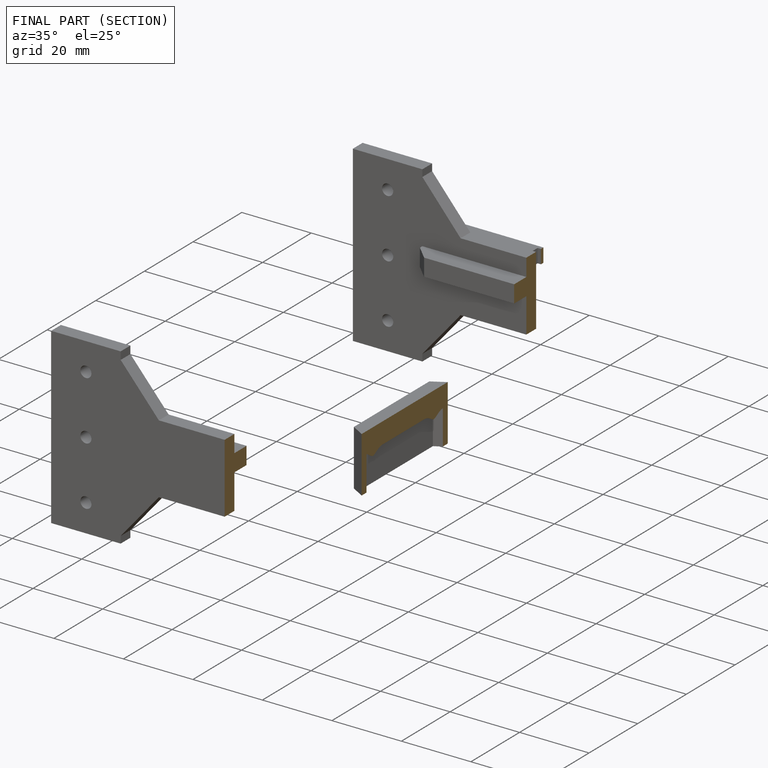
[diagram: finished part — half-section view (interior)]
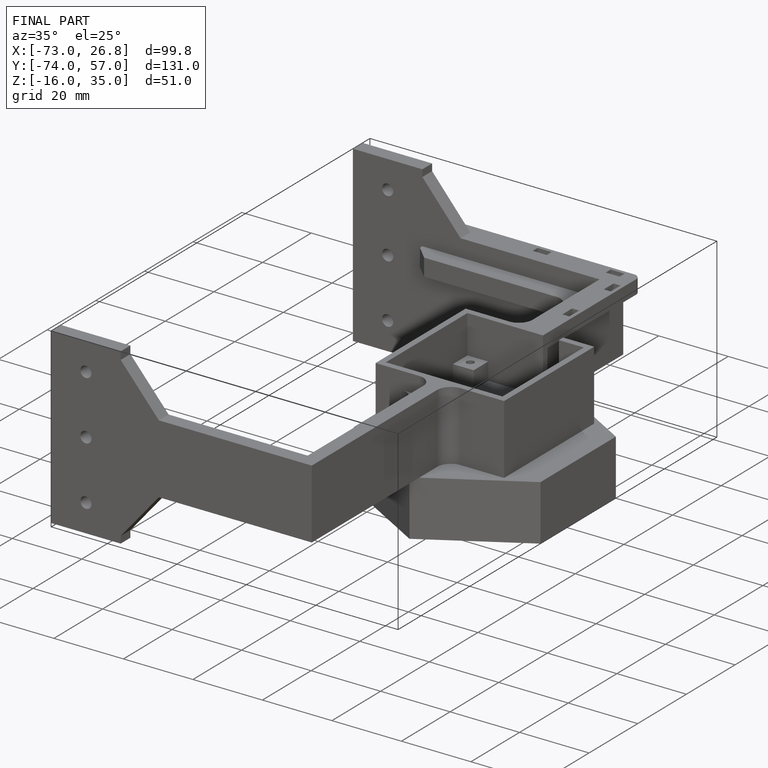
[diagram: finished part — iso view with bounding-box wireframe]
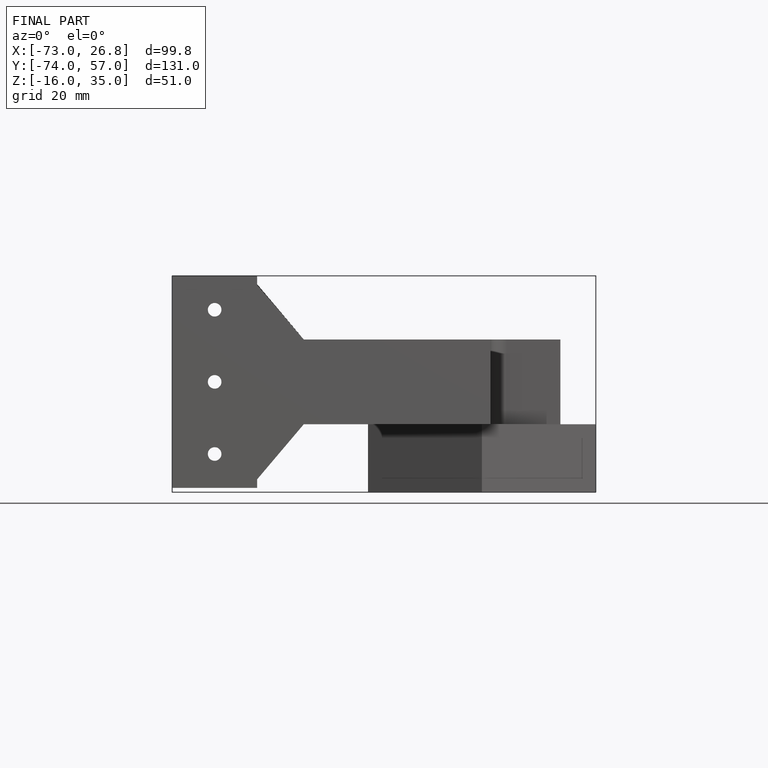
[diagram: finished part — front view with bounding-box wireframe]
